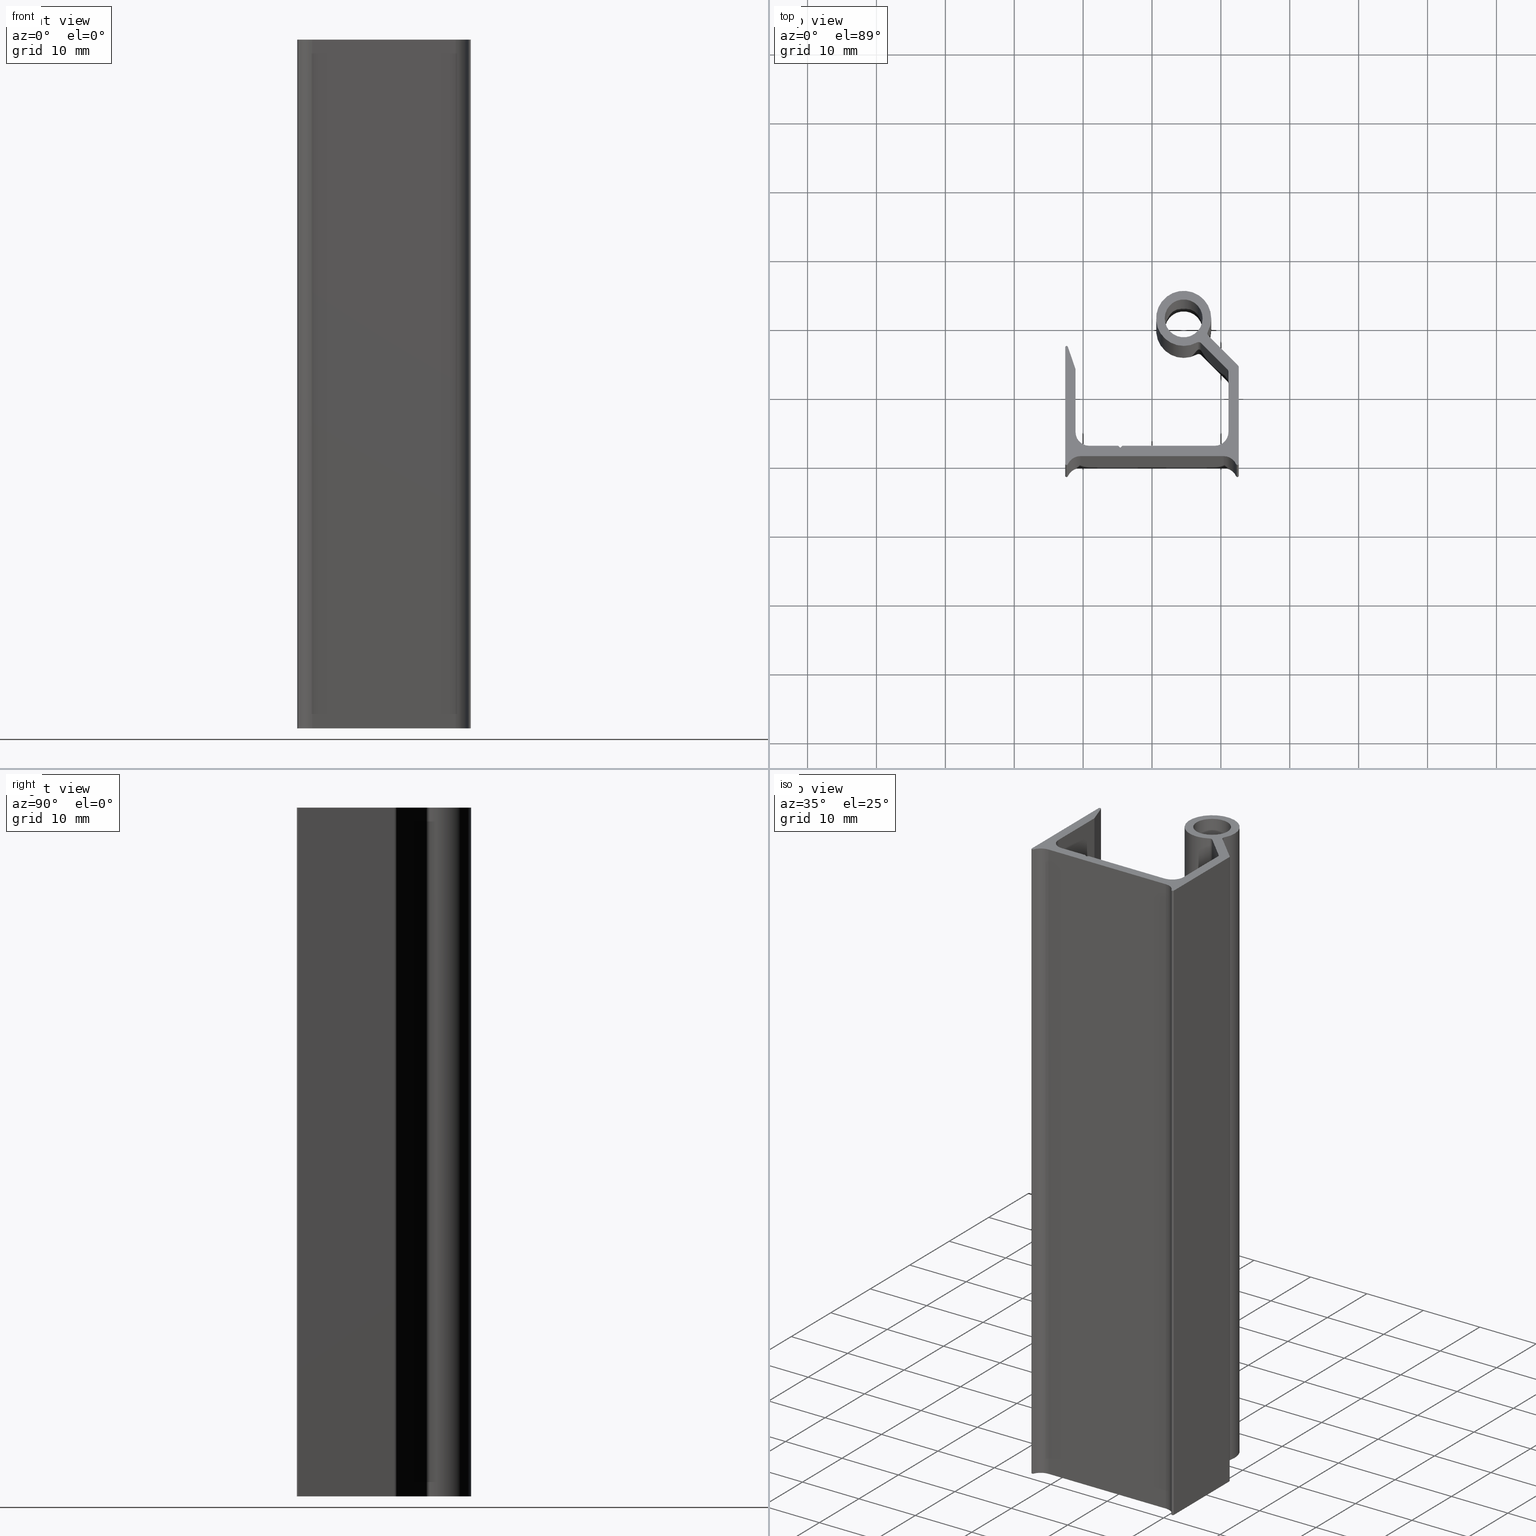
[diagram: canonical four-view strip — front | top / right | iso, engineering-drawing reading convention]
A machine part, canonical four-view strip (front | top / right | iso — engineering-drawing reading convention). The complete STEP part file that produces these views, byte-faithful:
ISO-10303-21;
HEADER;
/****************************************************************
 * Generated by software with PDE/Lib inside                    *
 * PDElib Version v4.4, created Mon 02/23/2004                  *
 * International Technegroup Inc. (www.iti-oh.com)              *
 ****************************************************************/
FILE_DESCRIPTION(('STEP AP203'),'2;1');
FILE_NAME('XB26532.stp','2011-03-21T16:28:58',(''),(''),'2009.3.110','THINKDESIGN','');
FILE_SCHEMA(('CONFIG_CONTROL_DESIGN'));
ENDSEC;
DATA;
#2=CARTESIAN_POINT('',(12.399999999982811,-1.100000000007697,0.0));
#3=DIRECTION('',(0.0,0.0,1.0));
#4=DIRECTION('',(-0.912493631814552,-0.409090909087320,0.0));
#5=AXIS2_PLACEMENT_3D('',#2,#3,#4);
#6=CYLINDRICAL_SURFACE('',#5,0.200000000000045);
#7=CARTESIAN_POINT('',(12.217501273619860,-1.181818181825179,0.0));
#8=VERTEX_POINT('',#7);
#9=CARTESIAN_POINT('',(12.599999999982742,-1.100000000007697,0.0));
#10=VERTEX_POINT('',#9);
#11=CARTESIAN_POINT('',(12.399999999982814,-1.100000000007697,0.0));
#12=DIRECTION('',(0.0,0.0,1.000000000000000));
#13=DIRECTION('',(-0.912493631814552,-0.409090909087320,0.0));
#14=AXIS2_PLACEMENT_3D('',#11,#12,#13);
#15=CIRCLE('',#14,0.200000000000045);
#16=EDGE_CURVE('',#8,#10,#15,.T.);
#17=ORIENTED_EDGE('',*,*,#16,.T.);
#18=CARTESIAN_POINT('',(12.599999999982742,-1.100000000007697,100.0));
#19=VERTEX_POINT('',#18);
#20=CARTESIAN_POINT('',(12.599999999982742,-1.100000000007697,0.0));
#21=DIRECTION('',(0.0,0.0,1.0));
#22=VECTOR('',#21,100.0);
#23=LINE('',#20,#22);
#24=EDGE_CURVE('',#10,#19,#23,.T.);
#25=ORIENTED_EDGE('',*,*,#24,.T.);
#26=CARTESIAN_POINT('',(12.217501273619860,-1.181818181825179,100.0));
#27=VERTEX_POINT('',#26);
#28=CARTESIAN_POINT('',(12.399999999982814,-1.100000000007697,100.000000000000060));
#29=DIRECTION('',(0.0,0.0,1.000000000000000));
#30=DIRECTION('',(-0.912493631814552,-0.409090909087320,0.0));
#31=AXIS2_PLACEMENT_3D('',#28,#29,#30);
#32=CIRCLE('',#31,0.200000000000045);
#33=EDGE_CURVE('',#27,#19,#32,.T.);
#34=ORIENTED_EDGE('',*,*,#33,.F.);
#35=CARTESIAN_POINT('',(12.217501273619860,-1.181818181825179,0.0));
#36=DIRECTION('',(0.0,0.0,1.0));
#37=VECTOR('',#36,100.0);
#38=LINE('',#35,#37);
#39=EDGE_CURVE('',#8,#27,#38,.T.);
#40=ORIENTED_EDGE('',*,*,#39,.F.);
#41=EDGE_LOOP('',(#17,#25,#34,#40));
#42=FACE_OUTER_BOUND('',#41,.T.);
#43=ADVANCED_FACE('',(#42),#6,.T.);
#44=CARTESIAN_POINT('',(12.599999999982742,-1.100000000007697,0.0));
#45=DIRECTION('',(1.0,0.0,0.0));
#46=DIRECTION('',(0.0,1.0,0.0));
#47=AXIS2_PLACEMENT_3D('',#44,#45,#46);
#48=PLANE('',#47);
#49=CARTESIAN_POINT('',(12.599999999982742,12.853553390585716,0.0));
#50=VERTEX_POINT('',#49);
#51=CARTESIAN_POINT('',(12.599999999982742,-1.100000000007697,0.0));
#52=DIRECTION('',(0.0,1.0,0.0));
#53=VECTOR('',#52,13.953553390593413);
#54=LINE('',#51,#53);
#55=EDGE_CURVE('',#10,#50,#54,.T.);
#56=ORIENTED_EDGE('',*,*,#55,.T.);
#57=CARTESIAN_POINT('',(12.599999999982742,12.853553390585716,100.0));
#58=VERTEX_POINT('',#57);
#59=CARTESIAN_POINT('',(12.599999999982742,12.853553390585716,0.0));
#60=DIRECTION('',(0.0,0.0,1.0));
#61=VECTOR('',#60,100.0);
#62=LINE('',#59,#61);
#63=EDGE_CURVE('',#50,#58,#62,.T.);
#64=ORIENTED_EDGE('',*,*,#63,.T.);
#65=CARTESIAN_POINT('',(12.599999999982742,-1.100000000007697,100.0));
#66=DIRECTION('',(0.0,1.0,0.0));
#67=VECTOR('',#66,13.953553390593413);
#68=LINE('',#65,#67);
#69=EDGE_CURVE('',#19,#58,#68,.T.);
#70=ORIENTED_EDGE('',*,*,#69,.F.);
#71=ORIENTED_EDGE('',*,*,#24,.F.);
#72=EDGE_LOOP('',(#56,#64,#70,#71));
#73=FACE_OUTER_BOUND('',#72,.T.);
#74=ADVANCED_FACE('',(#73),#48,.T.);
#75=CARTESIAN_POINT('',(12.099999999982742,12.853553390585716,0.0));
#76=DIRECTION('',(0.0,0.0,1.0));
#77=DIRECTION('',(1.0,0.0,0.0));
#78=AXIS2_PLACEMENT_3D('',#75,#76,#77);
#79=CYLINDRICAL_SURFACE('',#78,0.500000000000000);
#80=CARTESIAN_POINT('',(12.453553390576303,13.207106781178709,0.0));
#81=VERTEX_POINT('',#80);
#82=CARTESIAN_POINT('',(12.099999999982742,12.853553390585716,0.0));
#83=DIRECTION('',(0.0,0.0,1.0));
#84=DIRECTION('',(1.0,0.0,0.0));
#85=AXIS2_PLACEMENT_3D('',#82,#83,#84);
#86=CIRCLE('',#85,0.500000000000000);
#87=EDGE_CURVE('',#50,#81,#86,.T.);
#88=ORIENTED_EDGE('',*,*,#87,.T.);
#89=CARTESIAN_POINT('',(12.453553390576303,13.207106781178709,100.0));
#90=VERTEX_POINT('',#89);
#91=CARTESIAN_POINT('',(12.453553390576303,13.207106781178709,0.0));
#92=DIRECTION('',(0.0,0.0,1.0));
#93=VECTOR('',#92,100.0);
#94=LINE('',#91,#93);
#95=EDGE_CURVE('',#81,#90,#94,.T.);
#96=ORIENTED_EDGE('',*,*,#95,.T.);
#97=CARTESIAN_POINT('',(12.099999999982742,12.853553390585716,100.0));
#98=DIRECTION('',(0.0,0.0,1.0));
#99=DIRECTION('',(1.0,0.0,0.0));
#100=AXIS2_PLACEMENT_3D('',#97,#98,#99);
#101=CIRCLE('',#100,0.500000000000000);
#102=EDGE_CURVE('',#58,#90,#101,.T.);
#103=ORIENTED_EDGE('',*,*,#102,.F.);
#104=ORIENTED_EDGE('',*,*,#63,.F.);
#105=EDGE_LOOP('',(#88,#96,#103,#104));
#106=FACE_OUTER_BOUND('',#105,.T.);
#107=ADVANCED_FACE('',(#106),#79,.T.);
#108=CARTESIAN_POINT('',(12.453553390576303,13.207106781178709,0.0));
#109=DIRECTION('',(0.707106781186576,0.707106781186519,0.0));
#110=DIRECTION('',(-0.707106781186519,0.707106781186576,0.0));
#111=AXIS2_PLACEMENT_3D('',#108,#109,#110);
#112=PLANE('',#111);
#113=CARTESIAN_POINT('',(8.187084901032790,17.473575270722563,0.0));
#114=VERTEX_POINT('',#113);
#115=CARTESIAN_POINT('',(12.453553390576303,13.207106781178709,0.0));
#116=DIRECTION('',(-0.707106781186519,0.707106781186576,0.0));
#117=VECTOR('',#116,6.033697601350130);
#118=LINE('',#115,#117);
#119=EDGE_CURVE('',#81,#114,#118,.T.);
#120=ORIENTED_EDGE('',*,*,#119,.T.);
#121=CARTESIAN_POINT('',(8.187084901032790,17.473575270722563,100.0));
#122=VERTEX_POINT('',#121);
#123=CARTESIAN_POINT('',(8.187084901032790,17.473575270722563,0.0));
#124=DIRECTION('',(0.0,0.0,1.0));
#125=VECTOR('',#124,100.0);
#126=LINE('',#123,#125);
#127=EDGE_CURVE('',#114,#122,#126,.T.);
#128=ORIENTED_EDGE('',*,*,#127,.T.);
#129=CARTESIAN_POINT('',(12.453553390576303,13.207106781178709,100.0));
#130=DIRECTION('',(-0.707106781186519,0.707106781186576,0.0));
#131=VECTOR('',#130,6.033697601350130);
#132=LINE('',#129,#131);
#133=EDGE_CURVE('',#90,#122,#132,.T.);
#134=ORIENTED_EDGE('',*,*,#133,.F.);
#135=ORIENTED_EDGE('',*,*,#95,.F.);
#136=EDGE_LOOP('',(#120,#128,#134,#135));
#137=FACE_OUTER_BOUND('',#136,.T.);
#138=ADVANCED_FACE('',(#137),#112,.T.);
#139=CARTESIAN_POINT('',(8.540638291626351,17.827128661315555,0.0));
#140=DIRECTION('',(0.0,0.0,-1.0));
#141=DIRECTION('',(-0.707106781187116,-0.707106781185979,0.0));
#142=AXIS2_PLACEMENT_3D('',#139,#140,#141);
#143=CYLINDRICAL_SURFACE('',#142,0.499999999999998);
#144=CARTESIAN_POINT('',(8.102789592555155,18.068558810057709,0.0));
#145=VERTEX_POINT('',#144);
#146=CARTESIAN_POINT('',(8.540638291626353,17.827128661315559,0.0));
#147=DIRECTION('',(0.0,0.0,-1.000000000000000));
#148=DIRECTION('',(-0.875697398142397,0.482860297484310,0.0));
#149=AXIS2_PLACEMENT_3D('',#146,#147,#148);
#150=CIRCLE('',#149,0.499999999999998);
#151=EDGE_CURVE('',#114,#145,#150,.T.);
#152=ORIENTED_EDGE('',*,*,#151,.T.);
#153=CARTESIAN_POINT('',(8.102789592555155,18.068558810057709,100.0));
#154=VERTEX_POINT('',#153);
#155=CARTESIAN_POINT('',(8.102789592555155,18.068558810057709,0.0));
#156=DIRECTION('',(0.0,0.0,1.0));
#157=VECTOR('',#156,100.0);
#158=LINE('',#155,#157);
#159=EDGE_CURVE('',#145,#154,#158,.T.);
#160=ORIENTED_EDGE('',*,*,#159,.T.);
#161=CARTESIAN_POINT('',(8.540638291626353,17.827128661315559,100.000000000000060));
#162=DIRECTION('',(0.0,0.0,-1.000000000000000));
#163=DIRECTION('',(-0.875697398142397,0.482860297484310,0.0));
#164=AXIS2_PLACEMENT_3D('',#161,#162,#163);
#165=CIRCLE('',#164,0.499999999999998);
#166=EDGE_CURVE('',#122,#154,#165,.T.);
#167=ORIENTED_EDGE('',*,*,#166,.F.);
#168=ORIENTED_EDGE('',*,*,#127,.F.);
#169=EDGE_LOOP('',(#152,#160,#167,#168));
#170=FACE_OUTER_BOUND('',#169,.T.);
#171=ADVANCED_FACE('',(#170),#143,.F.);
#172=CARTESIAN_POINT('',(4.599999999985585,19.999999999995055,0.0));
#173=DIRECTION('',(0.0,0.0,1.0));
#174=DIRECTION('',(0.875697398142385,-0.482860297484332,0.0));
#175=AXIS2_PLACEMENT_3D('',#172,#173,#174);
#176=CYLINDRICAL_SURFACE('',#175,4.000000000000036);
#177=CARTESIAN_POINT('',(6.531441189920997,16.497210407424461,0.0));
#178=VERTEX_POINT('',#177);
#179=CARTESIAN_POINT('',(4.599999999985585,19.999999999995058,0.0));
#180=DIRECTION('',(0.0,0.0,1.0));
#181=DIRECTION('',(0.875697398142385,-0.482860297484332,0.0));
#182=AXIS2_PLACEMENT_3D('',#179,#180,#181);
#183=CIRCLE('',#182,4.000000000000036);
#184=EDGE_CURVE('',#145,#178,#183,.T.);
#185=ORIENTED_EDGE('',*,*,#184,.T.);
#186=CARTESIAN_POINT('',(6.531441189920997,16.497210407424461,100.0));
#187=VERTEX_POINT('',#186);
#188=CARTESIAN_POINT('',(6.531441189920997,16.497210407424461,0.0));
#189=DIRECTION('',(0.0,0.0,1.0));
#190=VECTOR('',#189,100.0);
#191=LINE('',#188,#190);
#192=EDGE_CURVE('',#178,#187,#191,.T.);
#193=ORIENTED_EDGE('',*,*,#192,.T.);
#194=CARTESIAN_POINT('',(4.599999999985585,19.999999999995058,100.0));
#195=DIRECTION('',(0.0,0.0,1.0));
#196=DIRECTION('',(0.875697398142385,-0.482860297484332,0.0));
#197=AXIS2_PLACEMENT_3D('',#194,#195,#196);
#198=CIRCLE('',#197,4.000000000000036);
#199=EDGE_CURVE('',#154,#187,#198,.T.);
#200=ORIENTED_EDGE('',*,*,#199,.F.);
#201=ORIENTED_EDGE('',*,*,#159,.F.);
#202=EDGE_LOOP('',(#185,#193,#200,#201));
#203=FACE_OUTER_BOUND('',#202,.T.);
#204=ADVANCED_FACE('',(#203),#176,.T.);
#205=CARTESIAN_POINT('',(6.772871338662867,16.059361708353094,0.0));
#206=DIRECTION('',(0.0,0.0,-1.0));
#207=DIRECTION('',(-0.482860297483730,0.875697398142717,0.0));
#208=AXIS2_PLACEMENT_3D('',#205,#206,#207);
#209=CYLINDRICAL_SURFACE('',#208,0.500000000000004);
#210=CARTESIAN_POINT('',(7.126424729256428,16.412915098946087,0.0));
#211=VERTEX_POINT('',#210);
#212=CARTESIAN_POINT('',(6.772871338662869,16.059361708353094,0.0));
#213=DIRECTION('',(0.0,0.0,-1.0));
#214=DIRECTION('',(0.707106781187116,0.707106781185979,0.0));
#215=AXIS2_PLACEMENT_3D('',#212,#213,#214);
#216=CIRCLE('',#215,0.500000000000004);
#217=EDGE_CURVE('',#178,#211,#216,.T.);
#218=ORIENTED_EDGE('',*,*,#217,.T.);
#219=CARTESIAN_POINT('',(7.126424729256428,16.412915098946087,100.0));
#220=VERTEX_POINT('',#219);
#221=CARTESIAN_POINT('',(7.126424729256428,16.412915098946087,0.0));
#222=DIRECTION('',(0.0,0.0,1.0));
#223=VECTOR('',#222,100.0);
#224=LINE('',#221,#223);
#225=EDGE_CURVE('',#211,#220,#224,.T.);
#226=ORIENTED_EDGE('',*,*,#225,.T.);
#227=CARTESIAN_POINT('',(6.772871338662869,16.059361708353094,100.0));
#228=DIRECTION('',(0.0,0.0,-1.0));
#229=DIRECTION('',(0.707106781187116,0.707106781185979,0.0));
#230=AXIS2_PLACEMENT_3D('',#227,#228,#229);
#231=CIRCLE('',#230,0.500000000000004);
#232=EDGE_CURVE('',#187,#220,#231,.T.);
#233=ORIENTED_EDGE('',*,*,#232,.F.);
#234=ORIENTED_EDGE('',*,*,#192,.F.);
#235=EDGE_LOOP('',(#218,#226,#233,#234));
#236=FACE_OUTER_BOUND('',#235,.T.);
#237=ADVANCED_FACE('',(#236),#209,.F.);
#238=CARTESIAN_POINT('',(7.126424729256428,16.412915098946087,0.0));
#239=DIRECTION('',(-0.707106781186569,-0.707106781186526,0.0));
#240=DIRECTION('',(0.707106781186526,-0.707106781186569,0.0));
#241=AXIS2_PLACEMENT_3D('',#238,#239,#240);
#242=PLANE('',#241);
#243=CARTESIAN_POINT('',(10.953553390579941,12.585786437622346,0.0));
#244=VERTEX_POINT('',#243);
#245=CARTESIAN_POINT('',(7.126424729256428,16.412915098946087,0.0));
#246=DIRECTION('',(0.707106781186526,-0.707106781186569,0.0));
#247=VECTOR('',#246,5.412377257790661);
#248=LINE('',#245,#247);
#249=EDGE_CURVE('',#211,#244,#248,.T.);
#250=ORIENTED_EDGE('',*,*,#249,.T.);
#251=CARTESIAN_POINT('',(10.953553390579941,12.585786437622346,100.0));
#252=VERTEX_POINT('',#251);
#253=CARTESIAN_POINT('',(10.953553390579941,12.585786437622346,0.0));
#254=DIRECTION('',(0.0,0.0,1.0));
#255=VECTOR('',#254,100.0);
#256=LINE('',#253,#255);
#257=EDGE_CURVE('',#244,#252,#256,.T.);
#258=ORIENTED_EDGE('',*,*,#257,.T.);
#259=CARTESIAN_POINT('',(7.126424729256428,16.412915098946087,100.0));
#260=DIRECTION('',(0.707106781186526,-0.707106781186569,0.0));
#261=VECTOR('',#260,5.412377257790661);
#262=LINE('',#259,#261);
#263=EDGE_CURVE('',#220,#252,#262,.T.);
#264=ORIENTED_EDGE('',*,*,#263,.F.);
#265=ORIENTED_EDGE('',*,*,#225,.F.);
#266=EDGE_LOOP('',(#250,#258,#264,#265));
#267=FACE_OUTER_BOUND('',#266,.T.);
#268=ADVANCED_FACE('',(#267),#242,.T.);
#269=CARTESIAN_POINT('',(10.599999999986380,12.232233047029354,0.0));
#270=DIRECTION('',(0.0,0.0,-1.0));
#271=DIRECTION('',(0.707106781187116,0.707106781185979,0.0));
#272=AXIS2_PLACEMENT_3D('',#269,#270,#271);
#273=CYLINDRICAL_SURFACE('',#272,0.500000000000000);
#274=CARTESIAN_POINT('',(11.099999999986380,12.232233047029354,0.0));
#275=VERTEX_POINT('',#274);
#276=CARTESIAN_POINT('',(10.599999999986380,12.232233047029354,0.0));
#277=DIRECTION('',(0.0,0.0,-1.0));
#278=DIRECTION('',(1.0,0.0,0.0));
#279=AXIS2_PLACEMENT_3D('',#276,#277,#278);
#280=CIRCLE('',#279,0.500000000000000);
#281=EDGE_CURVE('',#244,#275,#280,.T.);
#282=ORIENTED_EDGE('',*,*,#281,.T.);
#283=CARTESIAN_POINT('',(11.099999999986380,12.232233047029354,100.0));
#284=VERTEX_POINT('',#283);
#285=CARTESIAN_POINT('',(11.099999999986380,12.232233047029354,0.0));
#286=DIRECTION('',(0.0,0.0,1.0));
#287=VECTOR('',#286,100.0);
#288=LINE('',#285,#287);
#289=EDGE_CURVE('',#275,#284,#288,.T.);
#290=ORIENTED_EDGE('',*,*,#289,.T.);
#291=CARTESIAN_POINT('',(10.599999999986380,12.232233047029354,100.0));
#292=DIRECTION('',(0.0,0.0,-1.0));
#293=DIRECTION('',(1.0,0.0,0.0));
#294=AXIS2_PLACEMENT_3D('',#291,#292,#293);
#295=CIRCLE('',#294,0.500000000000000);
#296=EDGE_CURVE('',#252,#284,#295,.T.);
#297=ORIENTED_EDGE('',*,*,#296,.F.);
#298=ORIENTED_EDGE('',*,*,#257,.F.);
#299=EDGE_LOOP('',(#282,#290,#297,#298));
#300=FACE_OUTER_BOUND('',#299,.T.);
#301=ADVANCED_FACE('',(#300),#273,.F.);
#302=CARTESIAN_POINT('',(11.099999999986380,12.232233047029354,0.0));
#303=DIRECTION('',(-1.0,0.0,0.0));
#304=DIRECTION('',(0.0,-1.0,0.0));
#305=AXIS2_PLACEMENT_3D('',#302,#303,#304);
#306=PLANE('',#305);
#307=CARTESIAN_POINT('',(11.099999999986380,3.499999999995794,0.0));
#308=VERTEX_POINT('',#307);
#309=CARTESIAN_POINT('',(11.099999999986380,12.232233047029354,0.0));
#310=DIRECTION('',(0.0,-1.0,0.0));
#311=VECTOR('',#310,8.732233047033560);
#312=LINE('',#309,#311);
#313=EDGE_CURVE('',#275,#308,#312,.T.);
#314=ORIENTED_EDGE('',*,*,#313,.T.);
#315=CARTESIAN_POINT('',(11.099999999986380,3.499999999995794,100.0));
#316=VERTEX_POINT('',#315);
#317=CARTESIAN_POINT('',(11.099999999986380,3.499999999995794,0.0));
#318=DIRECTION('',(0.0,0.0,1.0));
#319=VECTOR('',#318,100.0);
#320=LINE('',#317,#319);
#321=EDGE_CURVE('',#308,#316,#320,.T.);
#322=ORIENTED_EDGE('',*,*,#321,.T.);
#323=CARTESIAN_POINT('',(11.099999999986380,12.232233047029354,100.0));
#324=DIRECTION('',(0.0,-1.0,0.0));
#325=VECTOR('',#324,8.732233047033560);
#326=LINE('',#323,#325);
#327=EDGE_CURVE('',#284,#316,#326,.T.);
#328=ORIENTED_EDGE('',*,*,#327,.F.);
#329=ORIENTED_EDGE('',*,*,#289,.F.);
#330=EDGE_LOOP('',(#314,#322,#328,#329));
#331=FACE_OUTER_BOUND('',#330,.T.);
#332=ADVANCED_FACE('',(#331),#306,.T.);
#333=CARTESIAN_POINT('',(9.099999999986380,3.499999999995794,0.0));
#334=DIRECTION('',(0.0,0.0,-1.0));
#335=DIRECTION('',(1.0,-6.123234E-017,0.0));
#336=AXIS2_PLACEMENT_3D('',#333,#334,#335);
#337=CYLINDRICAL_SURFACE('',#336,2.0);
#338=CARTESIAN_POINT('',(9.099999999986380,1.499999999995794,0.0));
#339=VERTEX_POINT('',#338);
#340=CARTESIAN_POINT('',(9.099999999986380,3.499999999995794,0.0));
#341=DIRECTION('',(0.0,0.0,-1.0));
#342=DIRECTION('',(0.0,-1.0,0.0));
#343=AXIS2_PLACEMENT_3D('',#340,#341,#342);
#344=CIRCLE('',#343,2.0);
#345=EDGE_CURVE('',#308,#339,#344,.T.);
#346=ORIENTED_EDGE('',*,*,#345,.T.);
#347=CARTESIAN_POINT('',(9.099999999986380,1.499999999995794,100.0));
#348=VERTEX_POINT('',#347);
#349=CARTESIAN_POINT('',(9.099999999986380,1.499999999995794,0.0));
#350=DIRECTION('',(0.0,0.0,1.0));
#351=VECTOR('',#350,100.0);
#352=LINE('',#349,#351);
#353=EDGE_CURVE('',#339,#348,#352,.T.);
#354=ORIENTED_EDGE('',*,*,#353,.T.);
#355=CARTESIAN_POINT('',(9.099999999986380,3.499999999995794,100.0));
#356=DIRECTION('',(0.0,0.0,-1.0));
#357=DIRECTION('',(0.0,-1.0,0.0));
#358=AXIS2_PLACEMENT_3D('',#355,#356,#357);
#359=CIRCLE('',#358,2.0);
#360=EDGE_CURVE('',#316,#348,#359,.T.);
#361=ORIENTED_EDGE('',*,*,#360,.F.);
#362=ORIENTED_EDGE('',*,*,#321,.F.);
#363=EDGE_LOOP('',(#346,#354,#361,#362));
#364=FACE_OUTER_BOUND('',#363,.T.);
#365=ADVANCED_FACE('',(#364),#337,.F.);
#366=CARTESIAN_POINT('',(9.099999999986380,1.499999999995794,0.0));
#367=DIRECTION('',(0.0,1.0,0.0));
#368=DIRECTION('',(-1.0,0.0,0.0));
#369=AXIS2_PLACEMENT_3D('',#366,#367,#368);
#370=PLANE('',#369);
#371=CARTESIAN_POINT('',(-4.300000000013938,1.499999999995794,0.0));
#372=VERTEX_POINT('',#371);
#373=CARTESIAN_POINT('',(9.099999999986380,1.499999999995794,0.0));
#374=DIRECTION('',(-1.0,0.0,0.0));
#375=VECTOR('',#374,13.400000000000318);
#376=LINE('',#373,#375);
#377=EDGE_CURVE('',#339,#372,#376,.T.);
#378=ORIENTED_EDGE('',*,*,#377,.T.);
#379=CARTESIAN_POINT('',(-4.300000000013938,1.499999999995794,100.0));
#380=VERTEX_POINT('',#379);
#381=CARTESIAN_POINT('',(-4.300000000013938,1.499999999995794,0.0));
#382=DIRECTION('',(0.0,0.0,1.0));
#383=VECTOR('',#382,100.0);
#384=LINE('',#381,#383);
#385=EDGE_CURVE('',#372,#380,#384,.T.);
#386=ORIENTED_EDGE('',*,*,#385,.T.);
#387=CARTESIAN_POINT('',(9.099999999986380,1.499999999995794,100.0));
#388=DIRECTION('',(-1.0,0.0,0.0));
#389=VECTOR('',#388,13.400000000000318);
#390=LINE('',#387,#389);
#391=EDGE_CURVE('',#348,#380,#390,.T.);
#392=ORIENTED_EDGE('',*,*,#391,.F.);
#393=ORIENTED_EDGE('',*,*,#353,.F.);
#394=EDGE_LOOP('',(#378,#386,#392,#393));
#395=FACE_OUTER_BOUND('',#394,.T.);
#396=ADVANCED_FACE('',(#395),#370,.T.);
#397=CARTESIAN_POINT('',(-4.300000000013938,1.499999999995794,0.0));
#398=DIRECTION('',(-0.707106781186682,0.707106781186414,0.0));
#399=DIRECTION('',(-0.707106781186414,-0.707106781186682,0.0));
#400=AXIS2_PLACEMENT_3D('',#397,#398,#399);
#401=PLANE('',#400);
#402=CARTESIAN_POINT('',(-4.599999999999795,1.200000000009823,0.0));
#403=VERTEX_POINT('',#402);
#404=CARTESIAN_POINT('',(-4.300000000013938,1.499999999995794,0.0));
#405=DIRECTION('',(-0.707106781186414,-0.707106781186682,0.0));
#406=VECTOR('',#405,0.424264068692008);
#407=LINE('',#404,#406);
#408=EDGE_CURVE('',#372,#403,#407,.T.);
#409=ORIENTED_EDGE('',*,*,#408,.T.);
#410=CARTESIAN_POINT('',(-4.599999999999795,1.200000000009823,100.0));
#411=VERTEX_POINT('',#410);
#412=CARTESIAN_POINT('',(-4.599999999999795,1.200000000009823,0.0));
#413=DIRECTION('',(0.0,0.0,1.0));
#414=VECTOR('',#413,100.0);
#415=LINE('',#412,#414);
#416=EDGE_CURVE('',#403,#411,#415,.T.);
#417=ORIENTED_EDGE('',*,*,#416,.T.);
#418=CARTESIAN_POINT('',(-4.300000000013938,1.499999999995794,100.0));
#419=DIRECTION('',(-0.707106781186414,-0.707106781186682,0.0));
#420=VECTOR('',#419,0.424264068692008);
#421=LINE('',#418,#420);
#422=EDGE_CURVE('',#380,#411,#421,.T.);
#423=ORIENTED_EDGE('',*,*,#422,.F.);
#424=ORIENTED_EDGE('',*,*,#385,.F.);
#425=EDGE_LOOP('',(#409,#417,#423,#424));
#426=FACE_OUTER_BOUND('',#425,.T.);
#427=ADVANCED_FACE('',(#426),#401,.T.);
#428=CARTESIAN_POINT('',(-4.599999999999795,1.200000000009823,0.0));
#429=DIRECTION('',(0.707106781185945,0.707106781187150,0.0));
#430=DIRECTION('',(-0.707106781187150,0.707106781185945,0.0));
#431=AXIS2_PLACEMENT_3D('',#428,#429,#430);
#432=PLANE('',#431);
#433=CARTESIAN_POINT('',(-4.899999999982811,1.499999999992326,0.0));
#434=VERTEX_POINT('',#433);
#435=CARTESIAN_POINT('',(-4.599999999999795,1.200000000009823,0.0));
#436=DIRECTION('',(-0.707106781187150,0.707106781185945,0.0));
#437=VECTOR('',#436,0.424264068687547);
#438=LINE('',#435,#437);
#439=EDGE_CURVE('',#403,#434,#438,.T.);
#440=ORIENTED_EDGE('',*,*,#439,.T.);
#441=CARTESIAN_POINT('',(-4.899999999982811,1.499999999992326,100.0));
#442=VERTEX_POINT('',#441);
#443=CARTESIAN_POINT('',(-4.899999999982811,1.499999999992326,0.0));
#444=DIRECTION('',(0.0,0.0,1.0));
#445=VECTOR('',#444,100.0);
#446=LINE('',#443,#445);
#447=EDGE_CURVE('',#434,#442,#446,.T.);
#448=ORIENTED_EDGE('',*,*,#447,.T.);
#449=CARTESIAN_POINT('',(-4.599999999999795,1.200000000009823,100.0));
#450=DIRECTION('',(-0.707106781187150,0.707106781185945,0.0));
#451=VECTOR('',#450,0.424264068687547);
#452=LINE('',#449,#451);
#453=EDGE_CURVE('',#411,#442,#452,.T.);
#454=ORIENTED_EDGE('',*,*,#453,.F.);
#455=ORIENTED_EDGE('',*,*,#416,.F.);
#456=EDGE_LOOP('',(#440,#448,#454,#455));
#457=FACE_OUTER_BOUND('',#456,.T.);
#458=ADVANCED_FACE('',(#457),#432,.T.);
#459=CARTESIAN_POINT('',(-4.899999999982811,1.499999999992326,0.0));
#460=DIRECTION('',(0.0,1.0,0.0));
#461=DIRECTION('',(-1.0,0.0,0.0));
#462=AXIS2_PLACEMENT_3D('',#459,#460,#461);
#463=PLANE('',#462);
#464=CARTESIAN_POINT('',(-9.099999999982742,1.499999999992440,0.0));
#465=VERTEX_POINT('',#464);
#466=CARTESIAN_POINT('',(-4.899999999982811,1.499999999992326,0.0));
#467=DIRECTION('',(-1.0,0.0,0.0));
#468=VECTOR('',#467,4.199999999999932);
#469=LINE('',#466,#468);
#470=EDGE_CURVE('',#434,#465,#469,.T.);
#471=ORIENTED_EDGE('',*,*,#470,.T.);
#472=CARTESIAN_POINT('',(-9.099999999982742,1.499999999992440,100.0));
#473=VERTEX_POINT('',#472);
#474=CARTESIAN_POINT('',(-9.099999999982742,1.499999999992440,0.0));
#475=DIRECTION('',(0.0,0.0,1.0));
#476=VECTOR('',#475,100.0);
#477=LINE('',#474,#476);
#478=EDGE_CURVE('',#465,#473,#477,.T.);
#479=ORIENTED_EDGE('',*,*,#478,.T.);
#480=CARTESIAN_POINT('',(-4.899999999982811,1.499999999992326,100.0));
#481=DIRECTION('',(-1.0,0.0,0.0));
#482=VECTOR('',#481,4.199999999999932);
#483=LINE('',#480,#482);
#484=EDGE_CURVE('',#442,#473,#483,.T.);
#485=ORIENTED_EDGE('',*,*,#484,.F.);
#486=ORIENTED_EDGE('',*,*,#447,.F.);
#487=EDGE_LOOP('',(#471,#479,#485,#486));
#488=FACE_OUTER_BOUND('',#487,.T.);
#489=ADVANCED_FACE('',(#488),#463,.T.);
#490=CARTESIAN_POINT('',(-9.099999999982742,3.499999999992440,0.0));
#491=DIRECTION('',(0.0,0.0,-1.0));
#492=DIRECTION('',(-1.960054E-015,-1.0,0.0));
#493=AXIS2_PLACEMENT_3D('',#490,#491,#492);
#494=CYLINDRICAL_SURFACE('',#493,2.0);
#495=CARTESIAN_POINT('',(-11.099999999982629,3.499999999992440,0.0));
#496=VERTEX_POINT('',#495);
#497=CARTESIAN_POINT('',(-9.099999999982742,3.499999999992440,0.0));
#498=DIRECTION('',(0.0,0.0,-1.0));
#499=DIRECTION('',(1.0,0.0,0.0));
#500=AXIS2_PLACEMENT_3D('',#497,#498,#499);
#501=CIRCLE('',#500,2.0);
#502=EDGE_CURVE('',#465,#496,#501,.T.);
#503=ORIENTED_EDGE('',*,*,#502,.T.);
#504=CARTESIAN_POINT('',(-11.099999999982629,3.499999999992440,100.0));
#505=VERTEX_POINT('',#504);
#506=CARTESIAN_POINT('',(-11.099999999982629,3.499999999992440,0.0));
#507=DIRECTION('',(0.0,0.0,1.0));
#508=VECTOR('',#507,100.0);
#509=LINE('',#506,#508);
#510=EDGE_CURVE('',#496,#505,#509,.T.);
#511=ORIENTED_EDGE('',*,*,#510,.T.);
#512=CARTESIAN_POINT('',(-9.099999999982742,3.499999999992440,100.0));
#513=DIRECTION('',(0.0,0.0,-1.0));
#514=DIRECTION('',(1.0,0.0,0.0));
#515=AXIS2_PLACEMENT_3D('',#512,#513,#514);
#516=CIRCLE('',#515,2.0);
#517=EDGE_CURVE('',#473,#505,#516,.T.);
#518=ORIENTED_EDGE('',*,*,#517,.F.);
#519=ORIENTED_EDGE('',*,*,#478,.F.);
#520=EDGE_LOOP('',(#503,#511,#518,#519));
#521=FACE_OUTER_BOUND('',#520,.T.);
#522=ADVANCED_FACE('',(#521),#494,.F.);
#523=CARTESIAN_POINT('',(-11.099999999982629,3.499999999992440,0.0));
#524=DIRECTION('',(1.0,0.0,0.0));
#525=DIRECTION('',(0.0,1.0,0.0));
#526=AXIS2_PLACEMENT_3D('',#523,#524,#525);
#527=PLANE('',#526);
#528=CARTESIAN_POINT('',(-11.099999999982515,12.548870918583305,0.0));
#529=VERTEX_POINT('',#528);
#530=CARTESIAN_POINT('',(-11.099999999982629,3.499999999992440,0.0));
#531=DIRECTION('',(0.0,1.0,0.0));
#532=VECTOR('',#531,9.048870918590865);
#533=LINE('',#530,#532);
#534=EDGE_CURVE('',#496,#529,#533,.T.);
#535=ORIENTED_EDGE('',*,*,#534,.T.);
#536=CARTESIAN_POINT('',(-11.099999999982515,12.548870918583305,100.0));
#537=VERTEX_POINT('',#536);
#538=CARTESIAN_POINT('',(-11.099999999982515,12.548870918583305,0.0));
#539=DIRECTION('',(0.0,0.0,1.0));
#540=VECTOR('',#539,100.0);
#541=LINE('',#538,#540);
#542=EDGE_CURVE('',#529,#537,#541,.T.);
#543=ORIENTED_EDGE('',*,*,#542,.T.);
#544=CARTESIAN_POINT('',(-11.099999999982629,3.499999999992440,100.0));
#545=DIRECTION('',(0.0,1.0,0.0));
#546=VECTOR('',#545,9.048870918590865);
#547=LINE('',#544,#546);
#548=EDGE_CURVE('',#505,#537,#547,.T.);
#549=ORIENTED_EDGE('',*,*,#548,.F.);
#550=ORIENTED_EDGE('',*,*,#510,.F.);
#551=EDGE_LOOP('',(#535,#543,#549,#550));
#552=FACE_OUTER_BOUND('',#551,.T.);
#553=ADVANCED_FACE('',(#552),#527,.T.);
#554=CARTESIAN_POINT('',(-11.599999999982515,12.548870918583305,0.0));
#555=DIRECTION('',(0.0,0.0,1.0));
#556=DIRECTION('',(1.0,0.0,0.0));
#557=AXIS2_PLACEMENT_3D('',#554,#555,#556);
#558=CYLINDRICAL_SURFACE('',#557,0.500000000000000);
#559=CARTESIAN_POINT('',(-11.127175402978651,12.711465200364728,0.0));
#560=VERTEX_POINT('',#559);
#561=CARTESIAN_POINT('',(-11.599999999982515,12.548870918583305,0.0));
#562=DIRECTION('',(0.0,0.0,1.0));
#563=DIRECTION('',(1.0,0.0,0.0));
#564=AXIS2_PLACEMENT_3D('',#561,#562,#563);
#565=CIRCLE('',#564,0.500000000000000);
#566=EDGE_CURVE('',#529,#560,#565,.T.);
#567=ORIENTED_EDGE('',*,*,#566,.T.);
#568=CARTESIAN_POINT('',(-11.127175402978651,12.711465200364728,100.0));
#569=VERTEX_POINT('',#568);
#570=CARTESIAN_POINT('',(-11.127175402978651,12.711465200364728,0.0));
#571=DIRECTION('',(0.0,0.0,1.0));
#572=VECTOR('',#571,100.0);
#573=LINE('',#570,#572);
#574=EDGE_CURVE('',#560,#569,#573,.T.);
#575=ORIENTED_EDGE('',*,*,#574,.T.);
#576=CARTESIAN_POINT('',(-11.599999999982515,12.548870918583305,100.0));
#577=DIRECTION('',(0.0,0.0,1.0));
#578=DIRECTION('',(1.0,0.0,0.0));
#579=AXIS2_PLACEMENT_3D('',#576,#577,#578);
#580=CIRCLE('',#579,0.500000000000000);
#581=EDGE_CURVE('',#537,#569,#580,.T.);
#582=ORIENTED_EDGE('',*,*,#581,.F.);
#583=ORIENTED_EDGE('',*,*,#542,.F.);
#584=EDGE_LOOP('',(#567,#575,#582,#583));
#585=FACE_OUTER_BOUND('',#584,.T.);
#586=ADVANCED_FACE('',(#585),#558,.T.);
#587=CARTESIAN_POINT('',(-11.127175402978651,12.711465200364728,0.0));
#588=DIRECTION('',(0.945649194008062,0.325188563562592,0.0));
#589=DIRECTION('',(-0.325188563562592,0.945649194008062,0.0));
#590=AXIS2_PLACEMENT_3D('',#587,#588,#589);
#591=PLANE('',#590);
#592=CARTESIAN_POINT('',(-12.207581722814439,15.853289606367866,0.0));
#593=VERTEX_POINT('',#592);
#594=CARTESIAN_POINT('',(-11.127175402978651,12.711465200364728,0.0));
#595=DIRECTION('',(-0.325188563562592,0.945649194008062,0.0));
#596=VECTOR('',#595,3.322399496463057);
#597=LINE('',#594,#596);
#598=EDGE_CURVE('',#560,#593,#597,.T.);
#599=ORIENTED_EDGE('',*,*,#598,.T.);
#600=CARTESIAN_POINT('',(-12.207581722814439,15.853289606367866,100.0));
#601=VERTEX_POINT('',#600);
#602=CARTESIAN_POINT('',(-12.207581722814439,15.853289606367866,0.0));
#603=DIRECTION('',(0.0,0.0,1.0));
#604=VECTOR('',#603,100.0);
#605=LINE('',#602,#604);
#606=EDGE_CURVE('',#593,#601,#605,.T.);
#607=ORIENTED_EDGE('',*,*,#606,.T.);
#608=CARTESIAN_POINT('',(-11.127175402978651,12.711465200364728,100.0));
#609=DIRECTION('',(-0.325188563562592,0.945649194008062,0.0));
#610=VECTOR('',#609,3.322399496463057);
#611=LINE('',#608,#610);
#612=EDGE_CURVE('',#569,#601,#611,.T.);
#613=ORIENTED_EDGE('',*,*,#612,.F.);
#614=ORIENTED_EDGE('',*,*,#574,.F.);
#615=EDGE_LOOP('',(#599,#607,#613,#614));
#616=FACE_OUTER_BOUND('',#615,.T.);
#617=ADVANCED_FACE('',(#616),#591,.T.);
#618=CARTESIAN_POINT('',(-12.399999999982811,15.798744151822405,0.0));
#619=DIRECTION('',(0.0,0.0,1.0));
#620=DIRECTION('',(1.0,0.0,0.0));
#621=AXIS2_PLACEMENT_3D('',#618,#619,#620);
#622=CYLINDRICAL_SURFACE('',#621,0.200000000000000);
#623=CARTESIAN_POINT('',(-12.599999999982742,15.798744151822405,0.0));
#624=VERTEX_POINT('',#623);
#625=CARTESIAN_POINT('',(-12.399999999982811,15.798744151822405,0.0));
#626=DIRECTION('',(0.0,0.0,1.0));
#627=DIRECTION('',(1.0,0.0,0.0));
#628=AXIS2_PLACEMENT_3D('',#625,#626,#627);
#629=CIRCLE('',#628,0.200000000000000);
#630=EDGE_CURVE('',#593,#624,#629,.T.);
#631=ORIENTED_EDGE('',*,*,#630,.T.);
#632=CARTESIAN_POINT('',(-12.599999999982742,15.798744151822405,100.0));
#633=VERTEX_POINT('',#632);
#634=CARTESIAN_POINT('',(-12.599999999982742,15.798744151822405,0.0));
#635=DIRECTION('',(0.0,0.0,1.0));
#636=VECTOR('',#635,100.0);
#637=LINE('',#634,#636);
#638=EDGE_CURVE('',#624,#633,#637,.T.);
#639=ORIENTED_EDGE('',*,*,#638,.T.);
#640=CARTESIAN_POINT('',(-12.399999999982811,15.798744151822405,100.0));
#641=DIRECTION('',(0.0,0.0,1.0));
#642=DIRECTION('',(1.0,0.0,0.0));
#643=AXIS2_PLACEMENT_3D('',#640,#641,#642);
#644=CIRCLE('',#643,0.200000000000000);
#645=EDGE_CURVE('',#601,#633,#644,.T.);
#646=ORIENTED_EDGE('',*,*,#645,.F.);
#647=ORIENTED_EDGE('',*,*,#606,.F.);
#648=EDGE_LOOP('',(#631,#639,#646,#647));
#649=FACE_OUTER_BOUND('',#648,.T.);
#650=ADVANCED_FACE('',(#649),#622,.T.);
#651=CARTESIAN_POINT('',(-12.599999999982742,15.798744151822405,0.0));
#652=DIRECTION('',(-1.0,0.0,0.0));
#653=DIRECTION('',(0.0,-1.0,0.0));
#654=AXIS2_PLACEMENT_3D('',#651,#652,#653);
#655=PLANE('',#654);
#656=CARTESIAN_POINT('',(-12.599999999982856,-1.100000000007697,0.0));
#657=VERTEX_POINT('',#656);
#658=CARTESIAN_POINT('',(-12.599999999982742,15.798744151822405,0.0));
#659=DIRECTION('',(0.0,-1.0,0.0));
#660=VECTOR('',#659,16.898744151830101);
#661=LINE('',#658,#660);
#662=EDGE_CURVE('',#624,#657,#661,.T.);
#663=ORIENTED_EDGE('',*,*,#662,.T.);
#664=CARTESIAN_POINT('',(-12.599999999982856,-1.100000000007697,100.0));
#665=VERTEX_POINT('',#664);
#666=CARTESIAN_POINT('',(-12.599999999982856,-1.100000000007697,0.0));
#667=DIRECTION('',(0.0,0.0,1.0));
#668=VECTOR('',#667,100.0);
#669=LINE('',#666,#668);
#670=EDGE_CURVE('',#657,#665,#669,.T.);
#671=ORIENTED_EDGE('',*,*,#670,.T.);
#672=CARTESIAN_POINT('',(-12.599999999982742,15.798744151822405,100.0));
#673=DIRECTION('',(0.0,-1.0,0.0));
#674=VECTOR('',#673,16.898744151830101);
#675=LINE('',#672,#674);
#676=EDGE_CURVE('',#633,#665,#675,.T.);
#677=ORIENTED_EDGE('',*,*,#676,.F.);
#678=ORIENTED_EDGE('',*,*,#638,.F.);
#679=EDGE_LOOP('',(#663,#671,#677,#678));
#680=FACE_OUTER_BOUND('',#679,.T.);
#681=ADVANCED_FACE('',(#680),#655,.T.);
#682=CARTESIAN_POINT('',(-12.399999999982811,-1.100000000007697,0.0));
#683=DIRECTION('',(0.0,0.0,1.0));
#684=DIRECTION('',(1.0,0.0,0.0));
#685=AXIS2_PLACEMENT_3D('',#682,#683,#684);
#686=CYLINDRICAL_SURFACE('',#685,0.200000000000000);
#687=CARTESIAN_POINT('',(-12.217501273619860,-1.181818181825179,0.0));
#688=VERTEX_POINT('',#687);
#689=CARTESIAN_POINT('',(-12.399999999982811,-1.100000000007697,0.0));
#690=DIRECTION('',(0.0,0.0,1.0));
#691=DIRECTION('',(1.0,0.0,0.0));
#692=AXIS2_PLACEMENT_3D('',#689,#690,#691);
#693=CIRCLE('',#692,0.200000000000000);
#694=EDGE_CURVE('',#657,#688,#693,.T.);
#695=ORIENTED_EDGE('',*,*,#694,.T.);
#696=CARTESIAN_POINT('',(-12.217501273619860,-1.181818181825179,100.0));
#697=VERTEX_POINT('',#696);
#698=CARTESIAN_POINT('',(-12.217501273619860,-1.181818181825179,0.0));
#699=DIRECTION('',(0.0,0.0,1.0));
#700=VECTOR('',#699,100.0);
#701=LINE('',#698,#700);
#702=EDGE_CURVE('',#688,#697,#701,.T.);
#703=ORIENTED_EDGE('',*,*,#702,.T.);
#704=CARTESIAN_POINT('',(-12.399999999982811,-1.100000000007697,100.0));
#705=DIRECTION('',(0.0,0.0,1.0));
#706=DIRECTION('',(1.0,0.0,0.0));
#707=AXIS2_PLACEMENT_3D('',#704,#705,#706);
#708=CIRCLE('',#707,0.200000000000000);
#709=EDGE_CURVE('',#665,#697,#708,.T.);
#710=ORIENTED_EDGE('',*,*,#709,.F.);
#711=ORIENTED_EDGE('',*,*,#670,.F.);
#712=EDGE_LOOP('',(#695,#703,#710,#711));
#713=FACE_OUTER_BOUND('',#712,.T.);
#714=ADVANCED_FACE('',(#713),#686,.T.);
#715=CARTESIAN_POINT('',(-10.392514009990805,-2.0,0.0));
#716=DIRECTION('',(0.0,0.0,-1.0));
#717=DIRECTION('',(-0.912493631814514,0.409090909087404,0.0));
#718=AXIS2_PLACEMENT_3D('',#715,#716,#717);
#719=CYLINDRICAL_SURFACE('',#718,2.0);
#720=CARTESIAN_POINT('',(-10.392514009990805,0.0,0.0));
#721=VERTEX_POINT('',#720);
#722=CARTESIAN_POINT('',(-10.392514009990805,-2.0,0.0));
#723=DIRECTION('',(0.0,0.0,-1.0));
#724=DIRECTION('',(0.0,1.0,0.0));
#725=AXIS2_PLACEMENT_3D('',#722,#723,#724);
#726=CIRCLE('',#725,2.0);
#727=EDGE_CURVE('',#688,#721,#726,.T.);
#728=ORIENTED_EDGE('',*,*,#727,.T.);
#729=CARTESIAN_POINT('',(-10.392514009990805,0.0,100.0));
#730=VERTEX_POINT('',#729);
#731=CARTESIAN_POINT('',(-10.392514009990805,0.0,0.0));
#732=DIRECTION('',(0.0,0.0,1.0));
#733=VECTOR('',#732,100.0);
#734=LINE('',#731,#733);
#735=EDGE_CURVE('',#721,#730,#734,.T.);
#736=ORIENTED_EDGE('',*,*,#735,.T.);
#737=CARTESIAN_POINT('',(-10.392514009990805,-2.0,100.0));
#738=DIRECTION('',(0.0,0.0,-1.0));
#739=DIRECTION('',(0.0,1.0,0.0));
#740=AXIS2_PLACEMENT_3D('',#737,#738,#739);
#741=CIRCLE('',#740,2.0);
#742=EDGE_CURVE('',#697,#730,#741,.T.);
#743=ORIENTED_EDGE('',*,*,#742,.F.);
#744=ORIENTED_EDGE('',*,*,#702,.F.);
#745=EDGE_LOOP('',(#728,#736,#743,#744));
#746=FACE_OUTER_BOUND('',#745,.T.);
#747=ADVANCED_FACE('',(#746),#719,.F.);
#748=CARTESIAN_POINT('',(-10.392514009990805,0.0,0.0));
#749=DIRECTION('',(0.0,-1.0,0.0));
#750=DIRECTION('',(1.0,0.0,0.0));
#751=AXIS2_PLACEMENT_3D('',#748,#749,#750);
#752=PLANE('',#751);
#753=CARTESIAN_POINT('',(10.392514009990805,5.684342E-014,0.0));
#754=VERTEX_POINT('',#753);
#755=CARTESIAN_POINT('',(-10.392514009990805,0.0,0.0));
#756=DIRECTION('',(1.0,0.0,0.0));
#757=VECTOR('',#756,20.785028019981610);
#758=LINE('',#755,#757);
#759=EDGE_CURVE('',#721,#754,#758,.T.);
#760=ORIENTED_EDGE('',*,*,#759,.T.);
#761=CARTESIAN_POINT('',(10.392514009990805,5.684342E-014,100.0));
#762=VERTEX_POINT('',#761);
#763=CARTESIAN_POINT('',(10.392514009990805,5.684342E-014,0.0));
#764=DIRECTION('',(0.0,0.0,1.0));
#765=VECTOR('',#764,100.0);
#766=LINE('',#763,#765);
#767=EDGE_CURVE('',#754,#762,#766,.T.);
#768=ORIENTED_EDGE('',*,*,#767,.T.);
#769=CARTESIAN_POINT('',(-10.392514009990805,0.0,100.0));
#770=DIRECTION('',(1.0,0.0,0.0));
#771=VECTOR('',#770,20.785028019981610);
#772=LINE('',#769,#771);
#773=EDGE_CURVE('',#730,#762,#772,.T.);
#774=ORIENTED_EDGE('',*,*,#773,.F.);
#775=ORIENTED_EDGE('',*,*,#735,.F.);
#776=EDGE_LOOP('',(#760,#768,#774,#775));
#777=FACE_OUTER_BOUND('',#776,.T.);
#778=ADVANCED_FACE('',(#777),#752,.T.);
#779=CARTESIAN_POINT('',(10.392514009990805,-2.0,0.0));
#780=DIRECTION('',(0.0,0.0,-1.0));
#781=DIRECTION('',(-5.551115E-017,1.0,0.0));
#782=AXIS2_PLACEMENT_3D('',#779,#780,#781);
#783=CYLINDRICAL_SURFACE('',#782,2.000000000000030);
#784=CARTESIAN_POINT('',(10.392514009990805,-2.000000000000000,0.0));
#785=DIRECTION('',(0.0,0.0,-1.000000000000000));
#786=DIRECTION('',(0.912493631814514,0.409090909087404,0.0));
#787=AXIS2_PLACEMENT_3D('',#784,#785,#786);
#788=CIRCLE('',#787,2.000000000000030);
#789=EDGE_CURVE('',#754,#8,#788,.T.);
#790=ORIENTED_EDGE('',*,*,#789,.T.);
#791=ORIENTED_EDGE('',*,*,#39,.T.);
#792=CARTESIAN_POINT('',(10.392514009990805,-2.000000000000000,100.000000000000060));
#793=DIRECTION('',(0.0,0.0,-1.000000000000000));
#794=DIRECTION('',(0.912493631814514,0.409090909087404,0.0));
#795=AXIS2_PLACEMENT_3D('',#792,#793,#794);
#796=CIRCLE('',#795,2.000000000000030);
#797=EDGE_CURVE('',#762,#27,#796,.T.);
#798=ORIENTED_EDGE('',*,*,#797,.F.);
#799=ORIENTED_EDGE('',*,*,#767,.F.);
#800=EDGE_LOOP('',(#790,#791,#798,#799));
#801=FACE_OUTER_BOUND('',#800,.T.);
#802=ADVANCED_FACE('',(#801),#783,.F.);
#803=CARTESIAN_POINT('',(4.600000000017189,19.999999999992440,0.0));
#804=DIRECTION('',(0.0,0.0,-1.0));
#805=DIRECTION('',(1.0,-2.449294E-016,0.0));
#806=AXIS2_PLACEMENT_3D('',#803,#804,#805);
#807=CYLINDRICAL_SURFACE('',#806,2.750000000000000);
#808=CARTESIAN_POINT('',(7.350000000017189,19.999999999992440,0.0));
#809=VERTEX_POINT('',#808);
#810=CARTESIAN_POINT('',(1.850000000017189,19.999999999992440,0.0));
#811=VERTEX_POINT('',#810);
#812=CARTESIAN_POINT('',(4.600000000017189,19.999999999992440,0.0));
#813=DIRECTION('',(0.0,0.0,-1.0));
#814=DIRECTION('',(1.0,0.0,0.0));
#815=AXIS2_PLACEMENT_3D('',#812,#813,#814);
#816=CIRCLE('',#815,2.750000000000000);
#817=EDGE_CURVE('',#809,#811,#816,.T.);
#818=ORIENTED_EDGE('',*,*,#817,.T.);
#819=CARTESIAN_POINT('',(4.600000000017189,19.999999999992440,0.0));
#820=DIRECTION('',(0.0,0.0,-1.0));
#821=DIRECTION('',(1.0,0.0,0.0));
#822=AXIS2_PLACEMENT_3D('',#819,#820,#821);
#823=CIRCLE('',#822,2.750000000000000);
#824=EDGE_CURVE('',#811,#809,#823,.T.);
#825=ORIENTED_EDGE('',*,*,#824,.T.);
#826=CARTESIAN_POINT('',(7.350000000017189,19.999999999992440,100.0));
#827=VERTEX_POINT('',#826);
#828=CARTESIAN_POINT('',(7.350000000017189,19.999999999992440,0.0));
#829=DIRECTION('',(0.0,0.0,1.0));
#830=VECTOR('',#829,100.0);
#831=LINE('',#828,#830);
#832=EDGE_CURVE('',#809,#827,#831,.T.);
#833=ORIENTED_EDGE('',*,*,#832,.T.);
#834=CARTESIAN_POINT('',(1.850000000017189,19.999999999992440,100.0));
#835=VERTEX_POINT('',#834);
#836=CARTESIAN_POINT('',(4.600000000017189,19.999999999992440,100.0));
#837=DIRECTION('',(0.0,0.0,-1.0));
#838=DIRECTION('',(1.0,0.0,0.0));
#839=AXIS2_PLACEMENT_3D('',#836,#837,#838);
#840=CIRCLE('',#839,2.750000000000000);
#841=EDGE_CURVE('',#835,#827,#840,.T.);
#842=ORIENTED_EDGE('',*,*,#841,.F.);
#843=CARTESIAN_POINT('',(4.600000000017189,19.999999999992440,100.0));
#844=DIRECTION('',(0.0,0.0,-1.0));
#845=DIRECTION('',(1.0,0.0,0.0));
#846=AXIS2_PLACEMENT_3D('',#843,#844,#845);
#847=CIRCLE('',#846,2.750000000000000);
#848=EDGE_CURVE('',#827,#835,#847,.T.);
#849=ORIENTED_EDGE('',*,*,#848,.F.);
#850=ORIENTED_EDGE('',*,*,#832,.F.);
#851=EDGE_LOOP('',(#818,#825,#833,#842,#849,#850));
#852=FACE_OUTER_BOUND('',#851,.T.);
#853=ADVANCED_FACE('',(#852),#807,.F.);
#854=CARTESIAN_POINT('',(-15.120120002526164,-3.830120002615388,0.0));
#855=DIRECTION('',(0.0,0.0,1.0));
#856=DIRECTION('',(1.0,0.0,0.0));
#857=AXIS2_PLACEMENT_3D('',#854,#855,#856);
#858=PLANE('',#857);
#859=ORIENTED_EDGE('',*,*,#789,.F.);
#860=ORIENTED_EDGE('',*,*,#759,.F.);
#861=ORIENTED_EDGE('',*,*,#727,.F.);
#862=ORIENTED_EDGE('',*,*,#694,.F.);
#863=ORIENTED_EDGE('',*,*,#662,.F.);
#864=ORIENTED_EDGE('',*,*,#630,.F.);
#865=ORIENTED_EDGE('',*,*,#598,.F.);
#866=ORIENTED_EDGE('',*,*,#566,.F.);
#867=ORIENTED_EDGE('',*,*,#534,.F.);
#868=ORIENTED_EDGE('',*,*,#502,.F.);
#869=ORIENTED_EDGE('',*,*,#470,.F.);
#870=ORIENTED_EDGE('',*,*,#439,.F.);
#871=ORIENTED_EDGE('',*,*,#408,.F.);
#872=ORIENTED_EDGE('',*,*,#377,.F.);
#873=ORIENTED_EDGE('',*,*,#345,.F.);
#874=ORIENTED_EDGE('',*,*,#313,.F.);
#875=ORIENTED_EDGE('',*,*,#281,.F.);
#876=ORIENTED_EDGE('',*,*,#249,.F.);
#877=ORIENTED_EDGE('',*,*,#217,.F.);
#878=ORIENTED_EDGE('',*,*,#184,.F.);
#879=ORIENTED_EDGE('',*,*,#151,.F.);
#880=ORIENTED_EDGE('',*,*,#119,.F.);
#881=ORIENTED_EDGE('',*,*,#87,.F.);
#882=ORIENTED_EDGE('',*,*,#55,.F.);
#883=ORIENTED_EDGE('',*,*,#16,.F.);
#884=EDGE_LOOP('',(#859,#860,#861,#862,#863,#864,#865,#866,#867,#868,#869,#870,#871,#872,#873,#874,#875,#876,#877,#878,#879,#880,#881,#882,#883));
#885=FACE_OUTER_BOUND('',#884,.T.);
#886=ORIENTED_EDGE('',*,*,#824,.F.);
#887=ORIENTED_EDGE('',*,*,#817,.F.);
#888=EDGE_LOOP('',(#886,#887));
#889=FACE_BOUND('',#888,.T.);
#890=ADVANCED_FACE('',(#885,#889),#858,.F.);
#891=CARTESIAN_POINT('',(-15.120120002526164,-3.830120002615388,100.0));
#892=DIRECTION('',(0.0,0.0,1.0));
#893=DIRECTION('',(1.0,0.0,0.0));
#894=AXIS2_PLACEMENT_3D('',#891,#892,#893);
#895=PLANE('',#894);
#896=ORIENTED_EDGE('',*,*,#33,.T.);
#897=ORIENTED_EDGE('',*,*,#69,.T.);
#898=ORIENTED_EDGE('',*,*,#102,.T.);
#899=ORIENTED_EDGE('',*,*,#133,.T.);
#900=ORIENTED_EDGE('',*,*,#166,.T.);
#901=ORIENTED_EDGE('',*,*,#199,.T.);
#902=ORIENTED_EDGE('',*,*,#232,.T.);
#903=ORIENTED_EDGE('',*,*,#263,.T.);
#904=ORIENTED_EDGE('',*,*,#296,.T.);
#905=ORIENTED_EDGE('',*,*,#327,.T.);
#906=ORIENTED_EDGE('',*,*,#360,.T.);
#907=ORIENTED_EDGE('',*,*,#391,.T.);
#908=ORIENTED_EDGE('',*,*,#422,.T.);
#909=ORIENTED_EDGE('',*,*,#453,.T.);
#910=ORIENTED_EDGE('',*,*,#484,.T.);
#911=ORIENTED_EDGE('',*,*,#517,.T.);
#912=ORIENTED_EDGE('',*,*,#548,.T.);
#913=ORIENTED_EDGE('',*,*,#581,.T.);
#914=ORIENTED_EDGE('',*,*,#612,.T.);
#915=ORIENTED_EDGE('',*,*,#645,.T.);
#916=ORIENTED_EDGE('',*,*,#676,.T.);
#917=ORIENTED_EDGE('',*,*,#709,.T.);
#918=ORIENTED_EDGE('',*,*,#742,.T.);
#919=ORIENTED_EDGE('',*,*,#773,.T.);
#920=ORIENTED_EDGE('',*,*,#797,.T.);
#921=EDGE_LOOP('',(#896,#897,#898,#899,#900,#901,#902,#903,#904,#905,#906,#907,#908,#909,#910,#911,#912,#913,#914,#915,#916,#917,#918,#919,#920));
#922=FACE_OUTER_BOUND('',#921,.T.);
#923=ORIENTED_EDGE('',*,*,#848,.T.);
#924=ORIENTED_EDGE('',*,*,#841,.T.);
#925=EDGE_LOOP('',(#923,#924));
#926=FACE_BOUND('',#925,.T.);
#927=ADVANCED_FACE('',(#922,#926),#895,.T.);
#928=CLOSED_SHELL('',(#43,#74,#107,#138,#171,#204,#237,#268,#301,#332,#365,#396,#427,#458,#489,#522,#553,#586,#617,#650,#681,#714,#747,#778,#802,#853,#890,#927));
#929=MANIFOLD_SOLID_BREP('',#928);
#935=(NAMED_UNIT(*)PLANE_ANGLE_UNIT()SI_UNIT($,.RADIAN.));
#936=DIMENSIONAL_EXPONENTS(0.0,0.0,0.0,0.0,0.0,0.0,0.0);
#937=PLANE_ANGLE_MEASURE_WITH_UNIT(PLANE_ANGLE_MEASURE(0.017453292500000),#935);
#941=(CONVERSION_BASED_UNIT('DEGREE',#937)NAMED_UNIT(#936)PLANE_ANGLE_UNIT());
#945=(NAMED_UNIT(*)SI_UNIT($,.STERADIAN.)SOLID_ANGLE_UNIT());
#949=(LENGTH_UNIT()NAMED_UNIT(*)SI_UNIT(.MILLI.,.METRE.));
#951=UNCERTAINTY_MEASURE_WITH_UNIT(LENGTH_MEASURE(0.001000000000000),#949,'DISTANCE_ACCURACY_VALUE','');
#953=(GEOMETRIC_REPRESENTATION_CONTEXT(3)GLOBAL_UNCERTAINTY_ASSIGNED_CONTEXT((#951))GLOBAL_UNIT_ASSIGNED_CONTEXT((#941,#945,#949))REPRESENTATION_CONTEXT('thinkdesign','2009.3.110'));
#954=ADVANCED_BREP_SHAPE_REPRESENTATION('',(#929),#953);
#955=APPLICATION_CONTEXT('configuration controlled 3D designs of mechanical parts and assemblies');
#956=APPLICATION_PROTOCOL_DEFINITION('International Standard','config_control_design',1995,#955);
#957=MECHANICAL_CONTEXT('None',#955,'mechanical');
#958=PRODUCT('None','None','None',(#957));
#959=PRODUCT_RELATED_PRODUCT_CATEGORY('detail',$,(#958));
#960=PRODUCT_CATEGORY('part',$);
#961=PRODUCT_CATEGORY_RELATIONSHIP('None','None',#960,#959);
#962=PERSON('PERSON1','None','None',$,$,$);
#963=ORGANIZATION('','None','None');
#964=PERSON_AND_ORGANIZATION(#962,#963);
#965=PERSON_AND_ORGANIZATION_ROLE('design_owner');
#966=CC_DESIGN_PERSON_AND_ORGANIZATION_ASSIGNMENT(#964,#965,(#958));
#967=PRODUCT_DEFINITION_FORMATION_WITH_SPECIFIED_SOURCE('None','None',#958,.NOT_KNOWN.);
#968=PERSON('PERSON2','None','None',$,$,$);
#969=ORGANIZATION('','None','None');
#970=PERSON_AND_ORGANIZATION(#968,#969);
#971=PERSON_AND_ORGANIZATION_ROLE('creator');
#972=CC_DESIGN_PERSON_AND_ORGANIZATION_ASSIGNMENT(#970,#971,(#967));
#973=PERSON('PERSON3','None','None',$,$,$);
#974=ORGANIZATION('','None','None');
#975=PERSON_AND_ORGANIZATION(#973,#974);
#976=PERSON_AND_ORGANIZATION_ROLE('part_supplier');
#977=CC_DESIGN_PERSON_AND_ORGANIZATION_ASSIGNMENT(#975,#976,(#967));
#978=APPROVAL_STATUS('approved');
#979=APPROVAL(#978,'None');
#980=PERSON('PERSON4','None','None',$,$,$);
#981=ORGANIZATION('','None','None');
#982=PERSON_AND_ORGANIZATION(#980,#981);
#983=APPROVAL_ROLE('None');
#984=APPROVAL_PERSON_ORGANIZATION(#982,#979,#983);
#985=CALENDAR_DATE(2011,21,3);
#986=COORDINATED_UNIVERSAL_TIME_OFFSET(0,0,.AHEAD.);
#987=LOCAL_TIME(16,28,58.0,#986);
#988=DATE_AND_TIME(#985,#987);
#989=APPROVAL_DATE_TIME(#988,#979);
#990=CC_DESIGN_APPROVAL(#979,(#967));
#991=SECURITY_CLASSIFICATION_LEVEL('unclassified');
#992=SECURITY_CLASSIFICATION('None','None',#991);
#993=CC_DESIGN_SECURITY_CLASSIFICATION(#992,(#967));
#994=APPROVAL_STATUS('approved');
#995=APPROVAL(#994,'None');
#996=PERSON('PERSON5','None','None',$,$,$);
#997=ORGANIZATION('','None','None');
#998=PERSON_AND_ORGANIZATION(#996,#997);
#999=APPROVAL_ROLE('None');
#1000=APPROVAL_PERSON_ORGANIZATION(#998,#995,#999);
#1001=CALENDAR_DATE(2011,21,3);
#1002=COORDINATED_UNIVERSAL_TIME_OFFSET(0,0,.AHEAD.);
#1003=LOCAL_TIME(16,28,58.0,#1002);
#1004=DATE_AND_TIME(#1001,#1003);
#1005=APPROVAL_DATE_TIME(#1004,#995);
#1006=CC_DESIGN_APPROVAL(#995,(#992));
#1007=PERSON('PERSON6','None','None',$,$,$);
#1008=ORGANIZATION('','None','None');
#1009=PERSON_AND_ORGANIZATION(#1007,#1008);
#1010=PERSON_AND_ORGANIZATION_ROLE('classification_officer');
#1011=CC_DESIGN_PERSON_AND_ORGANIZATION_ASSIGNMENT(#1009,#1010,(#992));
#1012=DATE_TIME_ROLE('classification_date');
#1013=CALENDAR_DATE(2011,21,3);
#1014=COORDINATED_UNIVERSAL_TIME_OFFSET(0,0,.AHEAD.);
#1015=LOCAL_TIME(16,28,58.0,#1014);
#1016=DATE_AND_TIME(#1013,#1015);
#1017=CC_DESIGN_DATE_AND_TIME_ASSIGNMENT(#1016,#1012,(#992));
#1018=DESIGN_CONTEXT('part definition',#955,'design');
#1019=DOCUMENT_TYPE('cad_filename');
#1020=DOCUMENT('None','None','None',#1019);
#1021=PRODUCT_DEFINITION_WITH_ASSOCIATED_DOCUMENTS('None','None',#967,#1018,(#1020));
#1022=PERSON('PERSON7','None','None',$,$,$);
#1023=ORGANIZATION('','None','None');
#1024=PERSON_AND_ORGANIZATION(#1022,#1023);
#1025=PERSON_AND_ORGANIZATION_ROLE('creator');
#1026=CC_DESIGN_PERSON_AND_ORGANIZATION_ASSIGNMENT(#1024,#1025,(#1021));
#1027=DATE_TIME_ROLE('creation_date');
#1028=CALENDAR_DATE(2011,21,3);
#1029=COORDINATED_UNIVERSAL_TIME_OFFSET(0,0,.AHEAD.);
#1030=LOCAL_TIME(16,28,58.0,#1029);
#1031=DATE_AND_TIME(#1028,#1030);
#1032=CC_DESIGN_DATE_AND_TIME_ASSIGNMENT(#1031,#1027,(#1021));
#1033=APPROVAL_STATUS('approved');
#1034=APPROVAL(#1033,'None');
#1035=PERSON('PERSON8','None','None',$,$,$);
#1036=ORGANIZATION('','None','None');
#1037=PERSON_AND_ORGANIZATION(#1035,#1036);
#1038=APPROVAL_ROLE('None');
#1039=APPROVAL_PERSON_ORGANIZATION(#1037,#1034,#1038);
#1040=CALENDAR_DATE(2011,21,3);
#1041=COORDINATED_UNIVERSAL_TIME_OFFSET(0,0,.AHEAD.);
#1042=LOCAL_TIME(16,28,58.0,#1041);
#1043=DATE_AND_TIME(#1040,#1042);
#1044=APPROVAL_DATE_TIME(#1043,#1034);
#1045=CC_DESIGN_APPROVAL(#1034,(#1021));
#1046=PRODUCT_DEFINITION_SHAPE('None','None',#1021);
#1047=SHAPE_DEFINITION_REPRESENTATION(#1046,#954);
#1048=DIMENSIONAL_EXPONENTS(0.0,0.0,0.0,0.0,0.0,0.0,0.0);
#1049=DIMENSIONAL_EXPONENTS(1.0,0.0,0.0,0.0,0.0,0.0,0.0);
ENDSEC;
END-ISO-10303-21;
